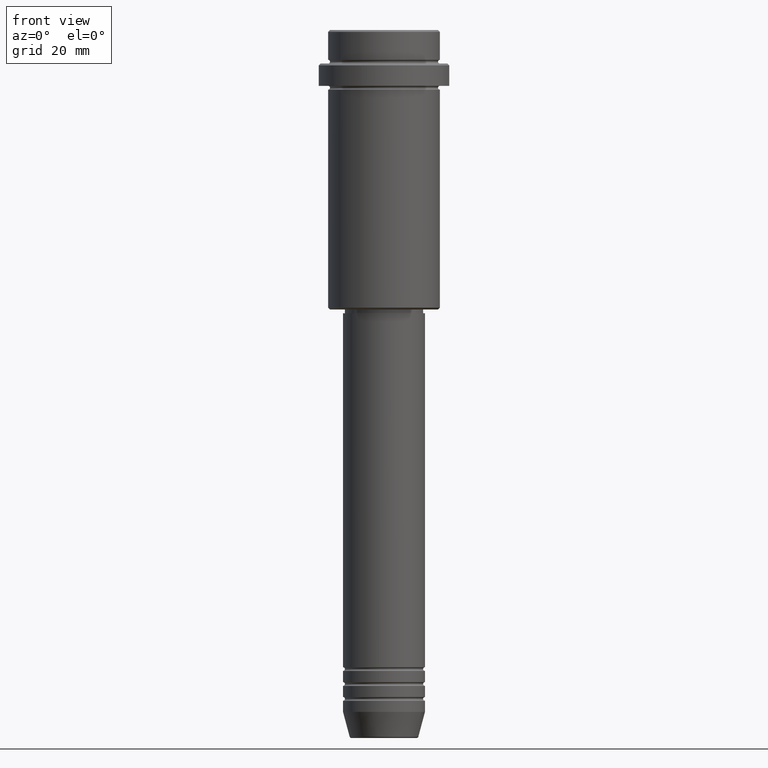
[diagram: clean part render]
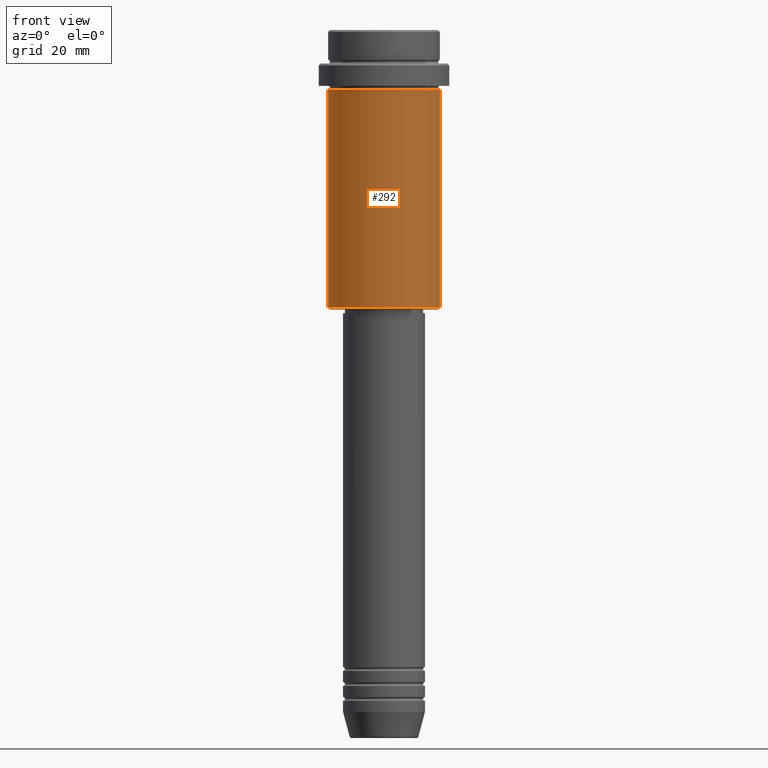
[diagram: same view with one face highlighted and labeled with its STEP entity id]
A machine part, front view. The second image highlights one B-rep face of the part: STEP entity #292.
In plain terms, the highlighted cylindrical surface (partial cylindrical patch) has radius 15 mm, axis along (-0, -0, 1).
Its self-contained STEP definition (entity closure, byte-faithful):
#7 = DIRECTION ( 'NONE',  ( -1.000000000000000000, 0.000000000000000000, 0.000000000000000000 ) ) ;
#66 = EDGE_LOOP ( 'NONE', ( #1040, #588, #1241, #1149 ) ) ;
#87 = EDGE_CURVE ( 'NONE', #142, #242, #895, .T. ) ;
#107 = EDGE_CURVE ( 'NONE', #1318, #242, #842, .T. ) ;
#142 = VERTEX_POINT ( 'NONE', #1191 ) ;
#150 = AXIS2_PLACEMENT_3D ( 'NONE', #1015, #1317, #7 ) ;
#170 = CARTESIAN_POINT ( 'NONE',  ( 15.00000000000000178, 0.000000000000000000, -16.00000000000000000 ) ) ;
#227 = CARTESIAN_POINT ( 'NONE',  ( 0.000000000000000000, 0.000000000000000000, -16.00000000000000000 ) ) ;
#242 = VERTEX_POINT ( 'NONE', #170 ) ;
#269 = CIRCLE ( 'NONE', #150, 15.00000000000000000 ) ;
#292 = ADVANCED_FACE ( 'NONE', ( #553 ), #1411, .T. ) ;
#334 = DIRECTION ( 'NONE',  ( 1.000000000000000000, 0.000000000000000000, 0.000000000000000000 ) ) ;
#352 = CARTESIAN_POINT ( 'NONE',  ( 15.00000000000000000, 0.000000000000000000, 0.000000000000000000 ) ) ;
#447 = CARTESIAN_POINT ( 'NONE',  ( 0.000000000000000000, 0.000000000000000000, 0.000000000000000000 ) ) ;
#474 = AXIS2_PLACEMENT_3D ( 'NONE', #447, #1302, #334 ) ;
#553 = FACE_OUTER_BOUND ( 'NONE', #66, .T. ) ;
#567 = DIRECTION ( 'NONE',  ( -0.000000000000000000, -0.000000000000000000, 1.000000000000000000 ) ) ;
#588 = ORIENTED_EDGE ( 'NONE', *, *, #746, .T. ) ;
#611 = LINE ( 'NONE', #1362, #636 ) ;
#636 = VECTOR ( 'NONE', #1042, 1000.000000000000000 ) ;
#746 = EDGE_CURVE ( 'NONE', #1103, #142, #269, .T. ) ;
#842 = CIRCLE ( 'NONE', #865, 15.00000000000000178 ) ;
#865 = AXIS2_PLACEMENT_3D ( 'NONE', #227, #567, #990 ) ;
#895 = LINE ( 'NONE', #352, #1404 ) ;
#990 = DIRECTION ( 'NONE',  ( 1.000000000000000000, 0.000000000000000000, 0.000000000000000000 ) ) ;
#1015 = CARTESIAN_POINT ( 'NONE',  ( 0.000000000000000000, 0.000000000000000000, -74.50000000000000000 ) ) ;
#1036 = CARTESIAN_POINT ( 'NONE',  ( -15.00000000000000355, 1.836970198721029983E-15, -16.00000000000000000 ) ) ;
#1040 = ORIENTED_EDGE ( 'NONE', *, *, #1401, .F. ) ;
#1042 = DIRECTION ( 'NONE',  ( -0.000000000000000000, -0.000000000000000000, 1.000000000000000000 ) ) ;
#1095 = CARTESIAN_POINT ( 'NONE',  ( -15.00000000000000000, 1.836970198721029589E-15, -74.50000000000000000 ) ) ;
#1103 = VERTEX_POINT ( 'NONE', #1095 ) ;
#1149 = ORIENTED_EDGE ( 'NONE', *, *, #107, .F. ) ;
#1191 = CARTESIAN_POINT ( 'NONE',  ( 15.00000000000000000, 0.000000000000000000, -74.50000000000000000 ) ) ;
#1241 = ORIENTED_EDGE ( 'NONE', *, *, #87, .T. ) ;
#1302 = DIRECTION ( 'NONE',  ( -0.000000000000000000, -0.000000000000000000, 1.000000000000000000 ) ) ;
#1317 = DIRECTION ( 'NONE',  ( -0.000000000000000000, -0.000000000000000000, 1.000000000000000000 ) ) ;
#1318 = VERTEX_POINT ( 'NONE', #1036 ) ;
#1362 = CARTESIAN_POINT ( 'NONE',  ( -15.00000000000000000, 1.836970198721029589E-15, 0.000000000000000000 ) ) ;
#1390 = DIRECTION ( 'NONE',  ( -0.000000000000000000, -0.000000000000000000, 1.000000000000000000 ) ) ;
#1401 = EDGE_CURVE ( 'NONE', #1103, #1318, #611, .T. ) ;
#1404 = VECTOR ( 'NONE', #1390, 1000.000000000000000 ) ;
#1411 = CYLINDRICAL_SURFACE ( 'NONE', #474, 15.00000000000000000 ) ;